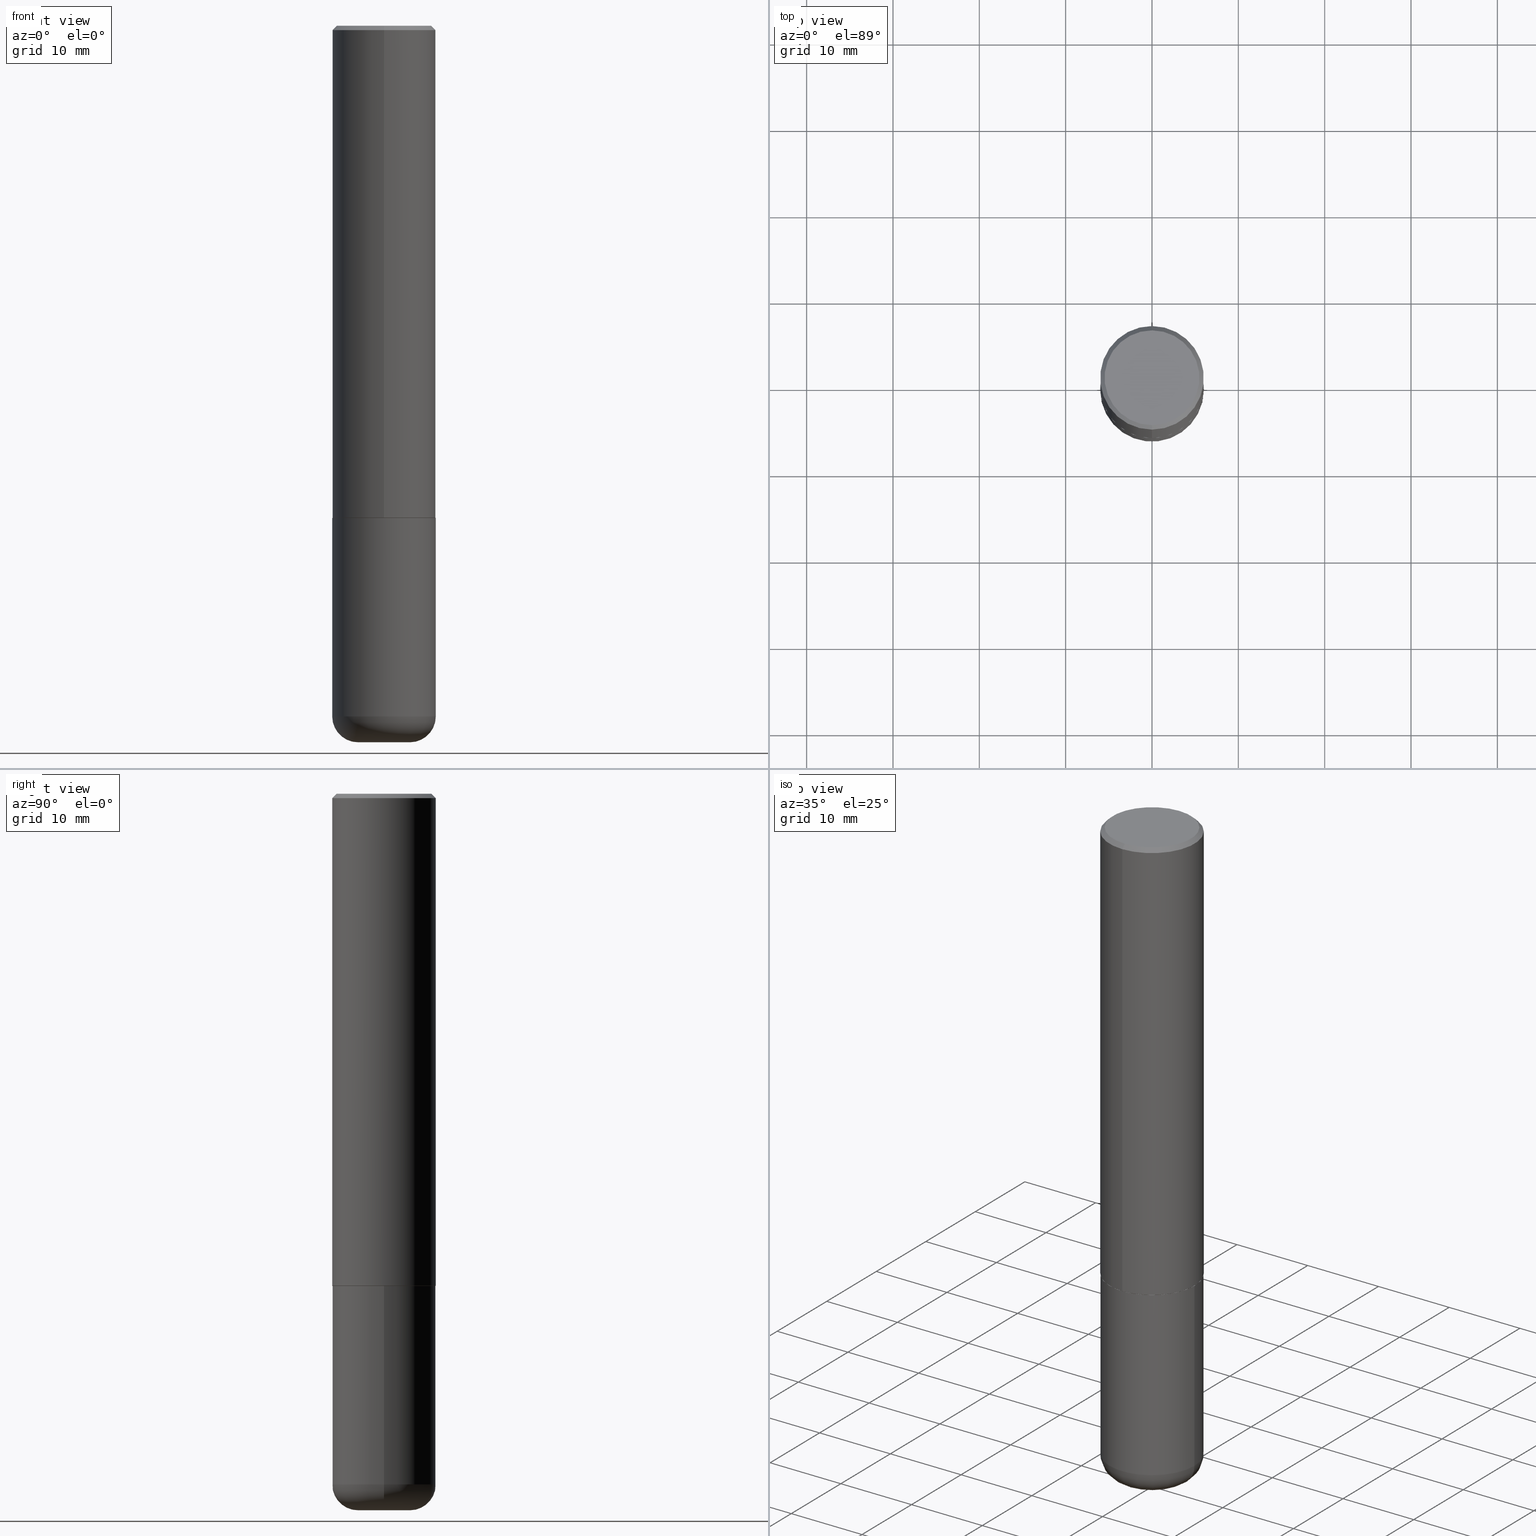
[diagram: canonical four-view strip — front | top / right | iso, engineering-drawing reading convention]
A machine part, canonical four-view strip (front | top / right | iso — engineering-drawing reading convention). The complete STEP part file that produces these views, byte-faithful:
ISO-10303-21;
HEADER;
FILE_DESCRIPTION (( 'STEP AP203' ),
    '1' );
FILE_NAME ('47172.STEP',
    '2024-03-06T01:27:27',
    ( '' ),
    ( '' ),
    'SwSTEP 2.0',
    'SolidWorks 2023',
    '' );
FILE_SCHEMA (( 'CONFIG_CONTROL_DESIGN' ));
ENDSEC;

DATA;
#1 = DIRECTION ( 'NONE',  ( 1.000000000000000000, -6.982962677686264344E-15, 4.883557194083111780E-29 ) ) ;
#2 = CIRCLE ( 'NONE', #68, 0.2361999999999999933 ) ;
#3 = DIRECTION ( 'NONE',  ( -2.445468806185136597E-29, 3.491481338843145583E-15, 1.000000000000000000 ) ) ;
#4 = ADVANCED_FACE ( 'NONE', ( #248 ), #299, .T. ) ;
#5 = ORIENTED_EDGE ( 'NONE', *, *, #257, .T. ) ;
#6 = DIRECTION ( 'NONE',  ( -6.982962677686265922E-15, -1.000000000000000000, 3.484499991918702719E-15 ) ) ;
#7 = PLANE ( 'NONE',  #114 ) ;
#8 = VERTEX_POINT ( 'NONE', #369 ) ;
#9 = EDGE_CURVE ( 'NONE', #234, #231, #21, .T. ) ;
#10 = ORIENTED_EDGE ( 'NONE', *, *, #9, .F. ) ;
#11 = EDGE_LOOP ( 'NONE', ( #208, #395, #271, #205 ) ) ;
#12 = DIRECTION ( 'NONE',  ( 1.000000000000000000, 0.000000000000000000, 0.000000000000000000 ) ) ;
#13 = FACE_OUTER_BOUND ( 'NONE', #306, .T. ) ;
#14 = PERSON_AND_ORGANIZATION ( #355, #28 ) ;
#15 = AXIS2_PLACEMENT_3D ( 'NONE', #317, #352, #321 ) ;
#16 = VERTEX_POINT ( 'NONE', #19 ) ;
#17 = ADVANCED_FACE ( 'NONE', ( #283 ), #310, .T. ) ;
#18 = CIRCLE ( 'NONE', #249, 0.2362000000000002709 ) ;
#19 = CARTESIAN_POINT ( 'NONE',  ( 1.678301941865385582E-15, 0.2361999999999924160, -2.243100000000000982 ) ) ;
#20 = ORIENTED_EDGE ( 'NONE', *, *, #112, .T. ) ;
#21 = LINE ( 'NONE', #251, #93 ) ;
#22 = CIRCLE ( 'NONE', #356, 0.2361999999999999933 ) ;
#23 = DIRECTION ( 'NONE',  ( -6.982962677686265922E-15, -1.000000000000000000, 3.494732472144603410E-15 ) ) ;
#24 = DIRECTION ( 'NONE',  ( 2.443198551934710321E-29, -3.494732472144603410E-15, -1.000000000000000000 ) ) ;
#25 = CARTESIAN_POINT ( 'NONE',  ( 7.178715118017931868E-45, -1.026837905226585320E-30, -2.938244667971532280E-16 ) ) ;
#26 = EDGE_CURVE ( 'NONE', #40, #231, #90, .T. ) ;
#27 = CONICAL_SURFACE ( 'NONE', #236, 0.2352000000000000202, 0.7853981633975336552 ) ;
#28 = ORGANIZATION ( 'UNSPECIFIED', 'UNSPECIFIED', '' ) ;
#29 = CARTESIAN_POINT ( 'NONE',  ( -1.649375784469443080E-15, -0.2362000000000081257, -2.243099999999999206 ) ) ;
#30 = DIRECTION ( 'NONE',  ( -6.982962677686265922E-15, -1.000000000000000000, 3.484499991918702719E-15 ) ) ;
#31 = EDGE_CURVE ( 'NONE', #173, #405, #370, .T. ) ;
#32 = DIRECTION ( 'NONE',  ( -6.982962677686265922E-15, -1.000000000000000000, 3.494732472144603410E-15 ) ) ;
#33 = ORIENTED_EDGE ( 'NONE', *, *, #26, .F. ) ;
#34 = VECTOR ( 'NONE', #400, 39.37007874015748143 ) ;
#35 = CC_DESIGN_APPROVAL ( #412, ( #269 ) ) ;
#36 = DIRECTION ( 'NONE',  ( 2.438088387897960049E-29, -3.491481338843145188E-15, -1.000000000000000000 ) ) ;
#37 = ORIENTED_EDGE ( 'NONE', *, *, #222, .T. ) ;
#38 = FACE_OUTER_BOUND ( 'NONE', #65, .T. ) ;
#39 = CARTESIAN_POINT ( 'NONE',  ( -0.1181000000000000383, -9.944215141480041685E-15, -3.267700000000000049 ) ) ;
#40 = VERTEX_POINT ( 'NONE', #304 ) ;
#41 = DIRECTION ( 'NONE',  ( 1.000000000000000000, -6.982962677686266711E-15, 4.876176775795936353E-29 ) ) ;
#42 = VECTOR ( 'NONE', #394, 39.37007874015748143 ) ;
#43 = ORIENTED_EDGE ( 'NONE', *, *, #110, .T. ) ;
#44 =( NAMED_UNIT ( * ) PLANE_ANGLE_UNIT ( ) SI_UNIT ( $, .RADIAN. ) );
#45 = CARTESIAN_POINT ( 'NONE',  ( 7.991058417971171713E-29, -1.140911357093774644E-14, -3.267700000000000049 ) ) ;
#46 = ADVANCED_FACE ( 'NONE', ( #13 ), #181, .F. ) ;
#47 = MECHANICAL_CONTEXT ( 'NONE', #162, 'mechanical' ) ;
#48 = CARTESIAN_POINT ( 'NONE',  ( -1.620449627073635079E-15, -0.2362000000000000766, -0.01999999999999926489 ) ) ;
#49 = MANIFOLD_SOLID_BREP ( 'Body-Move/Copy2[1]', #404 ) ;
#50 = APPLICATION_PROTOCOL_DEFINITION ( 'international standard', 'config_control_design', 1994, #354 ) ;
#51 = AXIS2_PLACEMENT_3D ( 'NONE', #318, #58, #91 ) ;
#52 = EDGE_LOOP ( 'NONE', ( #71, #398, #367, #329 ) ) ;
#53 = ORIENTED_EDGE ( 'NONE', *, *, #157, .F. ) ;
#54 = EDGE_CURVE ( 'NONE', #231, #295, #22, .T. ) ;
#55 = EDGE_LOOP ( 'NONE', ( #279, #149 ) ) ;
#56 = DIRECTION ( 'NONE',  ( 1.000000000000000000, -6.982962677686265133E-15, 0.000000000000000000 ) ) ;
#57 = AXIS2_PLACEMENT_3D ( 'NONE', #72, #3, #41 ) ;
#58 = DIRECTION ( 'NONE',  ( -6.982962677686266711E-15, -1.000000000000000000, 3.491481338843145583E-15 ) ) ;
#59 = DIRECTION ( 'NONE',  ( 6.982962677686265922E-15, 1.000000000000000000, -3.487819265831411744E-15 ) ) ;
#60 = DIRECTION ( 'NONE',  ( -6.982962677686265922E-15, -1.000000000000000000, 3.484499991918702719E-15 ) ) ;
#61 = CLOSED_SHELL ( 'NONE', ( #334, #17, #4, #229, #286, #170, #390, #46 ) ) ;
#62 = AXIS2_PLACEMENT_3D ( 'NONE', #25, #415, #347 ) ;
#63 = LINE ( 'NONE', #159, #128 ) ;
#64 = APPROVAL ( #183, 'UNSPECIFIED' ) ;
#65 = EDGE_LOOP ( 'NONE', ( #346, #20, #267, #184 ) ) ;
#66 = CARTESIAN_POINT ( 'NONE',  ( 0.2361999999999999933, -1.264614540928986883E-14, -3.149600000000000399 ) ) ;
#67 = ORIENTED_EDGE ( 'NONE', *, *, #118, .T. ) ;
#68 = AXIS2_PLACEMENT_3D ( 'NONE', #288, #191, #418 ) ;
#69 = LOCAL_TIME ( 20, 27, 27.00000000000000000, #401 ) ;
#70 = FACE_OUTER_BOUND ( 'NONE', #87, .T. ) ;
#71 = ORIENTED_EDGE ( 'NONE', *, *, #257, .F. ) ;
#72 = CARTESIAN_POINT ( 'NONE',  ( 0.000000000000000000, 0.000000000000000000, 0.000000000000000000 ) ) ;
#73 = ORIENTED_EDGE ( 'NONE', *, *, #353, .F. ) ;
#74 = CARTESIAN_POINT ( 'NONE',  ( 0.000000000000000000, 0.000000000000000000, 0.000000000000000000 ) ) ;
#75 = VERTEX_POINT ( 'NONE', #117 ) ;
#76 = EDGE_CURVE ( 'NONE', #16, #234, #18, .T. ) ;
#77 = DATE_AND_TIME ( #339, #364 ) ;
#78 = CIRCLE ( 'NONE', #287, 0.2361999999999999933 ) ;
#79 = LOCAL_TIME ( 20, 27, 27.00000000000000000, #406 ) ;
#80 = DIRECTION ( 'NONE',  ( -2.443198551934710321E-29, 3.494732472144603410E-15, 1.000000000000000000 ) ) ;
#81 = EDGE_CURVE ( 'NONE', #40, #220, #189, .T. ) ;
#82 = VERTEX_POINT ( 'NONE', #124 ) ;
#83 = PERSON_AND_ORGANIZATION ( #355, #28 ) ;
#84 = DIRECTION ( 'NONE',  ( -6.982962677686265922E-15, -1.000000000000000000, 3.469747663417773058E-15 ) ) ;
#85 = CARTESIAN_POINT ( 'NONE',  ( 0.000000000000000000, 0.000000000000000000, 0.000000000000000000 ) ) ;
#86 = EDGE_CURVE ( 'NONE', #220, #40, #147, .T. ) ;
#87 = EDGE_LOOP ( 'NONE', ( #402, #5, #73, #392 ) ) ;
#88 = AXIS2_PLACEMENT_3D ( 'NONE', #138, #266, #396 ) ;
#89 = APPROVAL_DATE_TIME ( #343, #412 ) ;
#90 = LINE ( 'NONE', #48, #209 ) ;
#91 = DIRECTION ( 'NONE',  ( 1.000000000000000000, -6.982962677686273021E-15, 0.000000000000000000 ) ) ;
#92 = CARTESIAN_POINT ( 'NONE',  ( 7.702248551960706711E-29, -1.099676962482037231E-14, -3.149600000000000399 ) ) ;
#93 = VECTOR ( 'NONE', #188, 39.37007874015748143 ) ;
#94 = CONICAL_SURFACE ( 'NONE', #275, 0.2352000000000000202, 0.7853981633975336552 ) ;
#95 =( GEOMETRIC_REPRESENTATION_CONTEXT ( 3 ) GLOBAL_UNCERTAINTY_ASSIGNED_CONTEXT ( ( #174 ) ) GLOBAL_UNIT_ASSIGNED_CONTEXT ( ( #134, #44, #305 ) ) REPRESENTATION_CONTEXT ( 'NONE', 'WORKASPACE' ) );
#96 = CC_DESIGN_DATE_AND_TIME_ASSIGNMENT ( #368, #276, ( #316 ) ) ;
#97 = DIRECTION ( 'NONE',  ( -2.445468806185136597E-29, 3.491481338843145583E-15, 1.000000000000000000 ) ) ;
#98 = CARTESIAN_POINT ( 'NONE',  ( 0.1181000000000000105, -1.223380146317249628E-14, -3.267700000000000049 ) ) ;
#99 = DIRECTION ( 'NONE',  ( 4.937700262164537787E-15, 0.7071067811865436870, -0.7071067811865513475 ) ) ;
#100 = AXIS2_PLACEMENT_3D ( 'NONE', #74, #109, #32 ) ;
#101 = FACE_OUTER_BOUND ( 'NONE', #55, .T. ) ;
#102 = DIRECTION ( 'NONE',  ( -2.445468806185136597E-29, 3.491481338843145583E-15, 1.000000000000000000 ) ) ;
#103 = EDGE_LOOP ( 'NONE', ( #187, #311, #409, #272 ) ) ;
#104 = DIRECTION ( 'NONE',  ( -2.443198551934710321E-29, 3.494732472144603016E-15, 1.000000000000000000 ) ) ;
#105 = ORIENTED_EDGE ( 'NONE', *, *, #54, .F. ) ;
#106 = VECTOR ( 'NONE', #223, 39.37007874015748143 ) ;
#107 = AXIS2_PLACEMENT_3D ( 'NONE', #202, #360, #389 ) ;
#108 = PLANE ( 'NONE',  #210 ) ;
#109 = DIRECTION ( 'NONE',  ( -2.443198551934710321E-29, 3.494732472144603410E-15, 1.000000000000000000 ) ) ;
#110 = EDGE_CURVE ( 'NONE', #173, #281, #139, .T. ) ;
#111 = EDGE_LOOP ( 'NONE', ( #340, #67, #43, #214 ) ) ;
#112 = EDGE_CURVE ( 'NONE', #405, #361, #255, .T. ) ;
#113 = APPROVAL_DATE_TIME ( #77, #362 ) ;
#114 = AXIS2_PLACEMENT_3D ( 'NONE', #166, #104, #296 ) ;
#115 = DIRECTION ( 'NONE',  ( 6.982962677686265922E-15, 1.000000000000000000, -3.494732472144603016E-15 ) ) ;
#116 = PERSON_AND_ORGANIZATION ( #355, #28 ) ;
#117 = CARTESIAN_POINT ( 'NONE',  ( 0.2362000000000000210, -9.484609056967400443E-15, -2.244100000000000428 ) ) ;
#118 = EDGE_CURVE ( 'NONE', #405, #173, #416, .T. ) ;
#119 = CALENDAR_DATE ( 2024, 5, 3 ) ;
#120 = EDGE_LOOP ( 'NONE', ( #324, #410 ) ) ;
#121 = AXIS2_PLACEMENT_3D ( 'NONE', #123, #308, #156 ) ;
#122 = AXIS2_PLACEMENT_3D ( 'NONE', #153, #80, #377 ) ;
#123 = CARTESIAN_POINT ( 'NONE',  ( 4.886397103869442398E-31, -6.989464944289237832E-17, -0.02000000000000009062 ) ) ;
#124 = CARTESIAN_POINT ( 'NONE',  ( -0.2362000000000000766, -7.737699506793781719E-15, -2.244100000000000428 ) ) ;
#125 = DIRECTION ( 'NONE',  ( 1.000000000000000000, -6.982962677686268288E-15, 0.000000000000000000 ) ) ;
#126 = EDGE_CURVE ( 'NONE', #281, #361, #78, .T. ) ;
#127 = CYLINDRICAL_SURFACE ( 'NONE', #176, 0.2361999999999999933 ) ;
#128 = VECTOR ( 'NONE', #256, 39.37007874015748143 ) ;
#129 = PRODUCT_DEFINITION_FORMATION_WITH_SPECIFIED_SOURCE ( 'ANY', '', #383, .NOT_KNOWN. ) ;
#130 = DIRECTION ( 'NONE',  ( -2.445468806185136597E-29, 3.491481338843145583E-15, 1.000000000000000000 ) ) ;
#131 = CARTESIAN_POINT ( 'NONE',  ( 0.000000000000000000, 0.000000000000000000, 0.000000000000000000 ) ) ;
#132 = CIRCLE ( 'NONE', #333, 0.2362000000000000210 ) ;
#133 = APPROVAL_PERSON_ORGANIZATION ( #83, #412, #247 ) ;
#134 =( CONVERSION_BASED_UNIT ( 'INCH', #292 ) LENGTH_UNIT ( ) NAMED_UNIT ( #135 ) );
#135 = DIMENSIONAL_EXPONENTS ( 1.000000000000000000, 0.000000000000000000, 0.000000000000000000, 0.000000000000000000, 0.000000000000000000, 0.000000000000000000, 0.000000000000000000 ) ;
#136 = DIRECTION ( 'NONE',  ( -2.445468806185136597E-29, 3.491481338843145583E-15, 1.000000000000000000 ) ) ;
#137 = CC_DESIGN_PERSON_AND_ORGANIZATION_ASSIGNMENT ( #180, #146, ( #269 ) ) ;
#138 = CARTESIAN_POINT ( 'NONE',  ( 7.702248551960706711E-29, -1.099676962482037231E-14, -3.149600000000000399 ) ) ;
#139 = CIRCLE ( 'NONE', #51, 0.1180999999999999966 ) ;
#140 = FACE_OUTER_BOUND ( 'NONE', #111, .T. ) ;
#141 = EDGE_CURVE ( 'NONE', #361, #82, #158, .T. ) ;
#142 = PERSON_AND_ORGANIZATION ( #355, #28 ) ;
#143 = VERTEX_POINT ( 'NONE', #413 ) ;
#144 = PERSON_AND_ORGANIZATION ( #355, #28 ) ;
#145 = DIRECTION ( 'NONE',  ( 2.443198551934710321E-29, -3.494732472144603016E-15, -1.000000000000000000 ) ) ;
#146 = PERSON_AND_ORGANIZATION_ROLE ( 'classification_officer' ) ;
#147 = CIRCLE ( 'NONE', #62, 0.2162000000000002808 ) ;
#148 = LOCAL_TIME ( 20, 27, 27.00000000000000000, #375 ) ;
#149 = ORIENTED_EDGE ( 'NONE', *, *, #244, .F. ) ;
#150 = CALENDAR_DATE ( 2024, 5, 3 ) ;
#151 = ORIENTED_EDGE ( 'NONE', *, *, #259, .T. ) ;
#152 = APPROVAL_STATUS ( 'not_yet_approved' ) ;
#153 = CARTESIAN_POINT ( 'NONE',  ( 0.000000000000000000, 0.000000000000000000, 0.000000000000000000 ) ) ;
#154 = PRODUCT_DEFINITION_SHAPE ( 'NONE', 'NONE',  #316 ) ;
#155 = EDGE_CURVE ( 'NONE', #295, #231, #2, .T. ) ;
#156 = DIRECTION ( 'NONE',  ( 6.982962677686265922E-15, 1.000000000000000000, -3.487819265831411744E-15 ) ) ;
#157 = EDGE_CURVE ( 'NONE', #82, #75, #380, .T. ) ;
#158 = LINE ( 'NONE', #225, #194 ) ;
#159 = CARTESIAN_POINT ( 'NONE',  ( -1.642392821791755093E-15, -0.2352000000000078750, -2.244099999999999540 ) ) ;
#160 = DIRECTION ( 'NONE',  ( -2.445468806185136877E-29, 3.491481338843145188E-15, 1.000000000000000000 ) ) ;
#161 = CIRCLE ( 'NONE', #397, 0.2361999999999999933 ) ;
#162 = APPLICATION_CONTEXT ( 'configuration controlled 3d designs of mechanical parts and assemblies' ) ;
#163 = ADVANCED_FACE ( 'NONE', ( #379 ), #127, .T. ) ;
#164 = LINE ( 'NONE', #386, #411 ) ;
#165 = LINE ( 'NONE', #332, #42 ) ;
#166 = CARTESIAN_POINT ( 'NONE',  ( 5.482781870396684000E-29, -7.842529140739704038E-15, -2.244100000000000428 ) ) ;
#167 = EDGE_LOOP ( 'NONE', ( #33, #331, #235, #300 ) ) ;
#168 = AXIS2_PLACEMENT_3D ( 'NONE', #391, #36, #239 ) ;
#169 = CARTESIAN_POINT ( 'NONE',  ( 7.702248551960706711E-29, -1.099676962482037231E-14, -3.149600000000000399 ) ) ;
#170 = ADVANCED_FACE ( 'NONE', ( #224 ), #27, .T. ) ;
#171 = ORIENTED_EDGE ( 'NONE', *, *, #118, .F. ) ;
#172 = FACE_OUTER_BOUND ( 'NONE', #120, .T. ) ;
#173 = VERTEX_POINT ( 'NONE', #98 ) ;
#174 = UNCERTAINTY_MEASURE_WITH_UNIT (LENGTH_MEASURE( 1.000000000000000082E-05 ), #134, 'distance_accuracy_value', 'NONE');
#175 = FACE_OUTER_BOUND ( 'NONE', #103, .T. ) ;
#176 = AXIS2_PLACEMENT_3D ( 'NONE', #131, #378, #350 ) ;
#177 = PERSON_AND_ORGANIZATION ( #355, #28 ) ;
#178 = EDGE_LOOP ( 'NONE', ( #203, #197, #212, #359 ) ) ;
#179 = DIRECTION ( 'NONE',  ( 1.000000000000000000, -6.982962677686272233E-15, 0.000000000000000000 ) ) ;
#180 = PERSON_AND_ORGANIZATION ( #355, #28 ) ;
#181 = PLANE ( 'NONE',  #268 ) ;
#182 = CONICAL_SURFACE ( 'NONE', #387, 0.2361999999999999933, 0.7853981633974463916 ) ;
#183 = APPROVAL_STATUS ( 'not_yet_approved' ) ;
#184 = ORIENTED_EDGE ( 'NONE', *, *, #110, .F. ) ;
#185 = EDGE_CURVE ( 'NONE', #16, #295, #193, .T. ) ;
#186 = SHAPE_DEFINITION_REPRESENTATION ( #154, #312 ) ;
#187 = ORIENTED_EDGE ( 'NONE', *, *, #185, .F. ) ;
#188 = DIRECTION ( 'NONE',  ( -2.443198551934710321E-29, 3.494732472144603016E-15, 1.000000000000000000 ) ) ;
#189 = CIRCLE ( 'NONE', #341, 0.2162000000000002808 ) ;
#190 = CARTESIAN_POINT ( 'NONE',  ( -0.1180999999999999966, -1.015761865388769332E-14, -3.149600000000000399 ) ) ;
#191 = DIRECTION ( 'NONE',  ( -2.443198551934710321E-29, 3.494732472144603410E-15, 1.000000000000000000 ) ) ;
#192 = DIRECTION ( 'NONE',  ( -2.443198551934710321E-29, 3.494732472144603410E-15, 1.000000000000000000 ) ) ;
#193 = LINE ( 'NONE', #351, #106 ) ;
#194 = VECTOR ( 'NONE', #160, 39.37007874015748143 ) ;
#195 = TOROIDAL_SURFACE ( 'NONE', #88, 0.1180999999999999966, 0.1181000000000000105 ) ;
#196 = DIRECTION ( 'NONE',  ( -2.443198551934710321E-29, 3.494732472144603410E-15, 1.000000000000000000 ) ) ;
#197 = ORIENTED_EDGE ( 'NONE', *, *, #26, .T. ) ;
#198 = EDGE_CURVE ( 'NONE', #143, #234, #63, .T. ) ;
#199 = CARTESIAN_POINT ( 'NONE',  ( 5.482781870396684000E-29, -7.842529140739704038E-15, -2.244100000000000428 ) ) ;
#200 = ORIENTED_EDGE ( 'NONE', *, *, #185, .T. ) ;
#201 = CC_DESIGN_SECURITY_CLASSIFICATION ( #269, ( #129 ) ) ;
#202 = CARTESIAN_POINT ( 'NONE',  ( 5.480338671844748839E-29, -7.839034408267561952E-15, -2.243100000000000094 ) ) ;
#203 = ORIENTED_EDGE ( 'NONE', *, *, #81, .F. ) ;
#204 = CARTESIAN_POINT ( 'NONE',  ( 7.991058417971171713E-29, -1.140911357093774644E-14, -3.267700000000000049 ) ) ;
#205 = ORIENTED_EDGE ( 'NONE', *, *, #259, .F. ) ;
#206 = PRODUCT_RELATED_PRODUCT_CATEGORY ( 'detail', '', ( #383 ) ) ;
#207 = LINE ( 'NONE', #291, #34 ) ;
#208 = ORIENTED_EDGE ( 'NONE', *, *, #126, .T. ) ;
#209 = VECTOR ( 'NONE', #336, 39.37007874015748143 ) ;
#210 = AXIS2_PLACEMENT_3D ( 'NONE', #204, #230, #330 ) ;
#211 = PERSON_AND_ORGANIZATION_ROLE ( 'creator' ) ;
#212 = ORIENTED_EDGE ( 'NONE', *, *, #54, .T. ) ;
#213 = DATE_AND_TIME ( #309, #327 ) ;
#214 = ORIENTED_EDGE ( 'NONE', *, *, #222, .F. ) ;
#215 = CC_DESIGN_PERSON_AND_ORGANIZATION_ASSIGNMENT ( #177, #211, ( #129 ) ) ;
#216 = CALENDAR_DATE ( 2024, 5, 3 ) ;
#217 = CARTESIAN_POINT ( 'NONE',  ( 7.178715118017931868E-45, -1.026837905226585320E-30, -2.938244667971532280E-16 ) ) ;
#218 = CIRCLE ( 'NONE', #349, 0.2352000000000000202 ) ;
#219 = APPROVAL_STATUS ( 'not_yet_approved' ) ;
#220 = VERTEX_POINT ( 'NONE', #382 ) ;
#221 = EDGE_LOOP ( 'NONE', ( #366, #171 ) ) ;
#222 = EDGE_CURVE ( 'NONE', #361, #281, #161, .T. ) ;
#223 = DIRECTION ( 'NONE',  ( -2.443198551934710321E-29, 3.494732472144603016E-15, 1.000000000000000000 ) ) ;
#224 = FACE_OUTER_BOUND ( 'NONE', #52, .T. ) ;
#225 = CARTESIAN_POINT ( 'NONE',  ( -0.2361999999999999933, 1.678301941865356591E-15, -1.161852468318208757E-29 ) ) ;
#226 = DIRECTION ( 'NONE',  ( -2.443198551934710321E-29, 3.494732472144603410E-15, 1.000000000000000000 ) ) ;
#227 = CARTESIAN_POINT ( 'NONE',  ( 5.482781870396684000E-29, -7.842529140739704038E-15, -2.244100000000000428 ) ) ;
#228 = CIRCLE ( 'NONE', #301, 0.2352000000000000202 ) ;
#229 = ADVANCED_FACE ( 'NONE', ( #315 ), #182, .T. ) ;
#230 = DIRECTION ( 'NONE',  ( 2.438088387897960049E-29, -3.491481338843145188E-15, -1.000000000000000000 ) ) ;
#231 = VERTEX_POINT ( 'NONE', #319 ) ;
#232 = EDGE_CURVE ( 'NONE', #143, #8, #218, .T. ) ;
#233 = CYLINDRICAL_SURFACE ( 'NONE', #100, 0.2362000000000001321 ) ;
#234 = VERTEX_POINT ( 'NONE', #29 ) ;
#235 = ORIENTED_EDGE ( 'NONE', *, *, #238, .T. ) ;
#236 = AXIS2_PLACEMENT_3D ( 'NONE', #260, #417, #357 ) ;
#237 = DESIGN_CONTEXT ( 'detailed design', #354, 'design' ) ;
#238 = EDGE_CURVE ( 'NONE', #220, #295, #164, .T. ) ;
#239 = DIRECTION ( 'NONE',  ( -1.000000000000000000, 6.982962677686265922E-15, -4.876176775795935793E-29 ) ) ;
#240 = DIRECTION ( 'NONE',  ( 0.000000000000000000, 0.000000000000000000, 1.000000000000000000 ) ) ;
#241 = ORIENTED_EDGE ( 'NONE', *, *, #353, .T. ) ;
#242 = SECURITY_CLASSIFICATION_LEVEL ( 'unclassified' ) ;
#243 = CARTESIAN_POINT ( 'NONE',  ( 4.886397103869442398E-31, -6.989464944289237832E-17, -0.02000000000000009062 ) ) ;
#244 = EDGE_CURVE ( 'NONE', #8, #143, #228, .T. ) ;
#245 = DATE_AND_TIME ( #119, #79 ) ;
#246 = CARTESIAN_POINT ( 'NONE',  ( 5.480338671844748839E-29, -7.839034408267561952E-15, -2.243100000000000094 ) ) ;
#247 = APPROVAL_ROLE ( '' ) ;
#248 = FACE_OUTER_BOUND ( 'NONE', #178, .T. ) ;
#249 = AXIS2_PLACEMENT_3D ( 'NONE', #246, #374, #84 ) ;
#250 = APPROVAL_ROLE ( '' ) ;
#251 = CARTESIAN_POINT ( 'NONE',  ( -1.649375784469496920E-15, -0.2362000000000001321, 8.254558099205557624E-16 ) ) ;
#252 = DIRECTION ( 'NONE',  ( -2.445468806185136597E-29, 3.491481338843145583E-15, 1.000000000000000000 ) ) ;
#253 = CARTESIAN_POINT ( 'NONE',  ( 4.886397103869442398E-31, -6.989464944289237832E-17, -0.02000000000000009062 ) ) ;
#254 = AXIS2_PLACEMENT_3D ( 'NONE', #45, #277, #179 ) ;
#255 = CIRCLE ( 'NONE', #313, 0.1180999999999999966 ) ;
#256 = DIRECTION ( 'NONE',  ( -4.937700262164969294E-15, -0.7071067811866054154, 0.7071067811864896191 ) ) ;
#257 = EDGE_CURVE ( 'NONE', #8, #16, #165, .T. ) ;
#258 = DIRECTION ( 'NONE',  ( 1.000000000000000000, -6.982962677686265133E-15, 0.000000000000000000 ) ) ;
#259 = EDGE_CURVE ( 'NONE', #281, #75, #207, .T. ) ;
#260 = CARTESIAN_POINT ( 'NONE',  ( 5.482781870396684000E-29, -7.842529140739704038E-15, -2.244100000000000428 ) ) ;
#261 = AXIS2_PLACEMENT_3D ( 'NONE', #284, #252, #125 ) ;
#262 = FACE_OUTER_BOUND ( 'NONE', #11, .T. ) ;
#263 = ORIENTED_EDGE ( 'NONE', *, *, #81, .T. ) ;
#264 = CARTESIAN_POINT ( 'NONE',  ( -0.2361999999999999933, -9.318467682955017493E-15, -3.149600000000000399 ) ) ;
#265 = CC_DESIGN_DATE_AND_TIME_ASSIGNMENT ( #245, #373, ( #269 ) ) ;
#266 = DIRECTION ( 'NONE',  ( -2.445468806185136597E-29, 3.491481338843145583E-15, 1.000000000000000000 ) ) ;
#267 = ORIENTED_EDGE ( 'NONE', *, *, #126, .F. ) ;
#268 = AXIS2_PLACEMENT_3D ( 'NONE', #338, #145, #115 ) ;
#269 = SECURITY_CLASSIFICATION ( '', '', #242 ) ;
#270 = PERSON_AND_ORGANIZATION_ROLE ( 'design_owner' ) ;
#271 = ORIENTED_EDGE ( 'NONE', *, *, #273, .F. ) ;
#272 = ORIENTED_EDGE ( 'NONE', *, *, #155, .F. ) ;
#273 = EDGE_CURVE ( 'NONE', #75, #82, #132, .T. ) ;
#274 = CIRCLE ( 'NONE', #107, 0.2362000000000002709 ) ;
#275 = AXIS2_PLACEMENT_3D ( 'NONE', #199, #294, #6 ) ;
#276 = DATE_TIME_ROLE ( 'creation_date' ) ;
#277 = DIRECTION ( 'NONE',  ( -2.445468806185136597E-29, 3.491481338843145583E-15, 1.000000000000000000 ) ) ;
#278 = COORDINATED_UNIVERSAL_TIME_OFFSET ( 5, 0, .BEHIND. ) ;
#279 = ORIENTED_EDGE ( 'NONE', *, *, #232, .F. ) ;
#280 = ADVANCED_FACE ( 'NONE', ( #172 ), #358, .F. ) ;
#281 = VERTEX_POINT ( 'NONE', #66 ) ;
#282 = TOROIDAL_SURFACE ( 'NONE', #293, 0.1180999999999999966, 0.1181000000000000105 ) ;
#283 = FACE_OUTER_BOUND ( 'NONE', #344, .T. ) ;
#284 = CARTESIAN_POINT ( 'NONE',  ( 5.487876547960065873E-29, -7.835233272497903917E-15, -2.244100000000000428 ) ) ;
#285 = CARTESIAN_POINT ( 'NONE',  ( 7.702248551960706711E-29, -1.099676962482037231E-14, -3.149600000000000399 ) ) ;
#286 = ADVANCED_FACE ( 'NONE', ( #175 ), #233, .T. ) ;
#287 = AXIS2_PLACEMENT_3D ( 'NONE', #285, #97, #56 ) ;
#288 = CARTESIAN_POINT ( 'NONE',  ( 4.886397103869442398E-31, -6.989464944289237832E-17, -0.02000000000000009062 ) ) ;
#289 = DIRECTION ( 'NONE',  ( 7.105427357601001859E-15, 1.000000000000000000, -3.491481338843145583E-15 ) ) ;
#290 = ADVANCED_FACE ( 'NONE', ( #262 ), #365, .T. ) ;
#291 = CARTESIAN_POINT ( 'NONE',  ( 0.2361999999999999933, -1.649375784469496131E-15, 1.151752954443000088E-29 ) ) ;
#292 = LENGTH_MEASURE_WITH_UNIT ( LENGTH_MEASURE( 0.02539999999999999897 ), #298 );
#293 = AXIS2_PLACEMENT_3D ( 'NONE', #169, #136, #1 ) ;
#294 = DIRECTION ( 'NONE',  ( -2.443198551934710321E-29, 3.494732472144603410E-15, 1.000000000000000000 ) ) ;
#295 = VERTEX_POINT ( 'NONE', #328 ) ;
#296 = DIRECTION ( 'NONE',  ( -6.982962677686265922E-15, -1.000000000000000000, 3.494732472144603016E-15 ) ) ;
#297 = ORIENTED_EDGE ( 'NONE', *, *, #141, .F. ) ;
#298 =( LENGTH_UNIT ( ) NAMED_UNIT ( * ) SI_UNIT ( $, .METRE. ) );
#299 = CONICAL_SURFACE ( 'NONE', #121, 0.2361999999999999933, 0.7853981633974463916 ) ;
#300 = ORIENTED_EDGE ( 'NONE', *, *, #155, .T. ) ;
#301 = AXIS2_PLACEMENT_3D ( 'NONE', #227, #196, #30 ) ;
#302 = CC_DESIGN_APPROVAL ( #362, ( #129 ) ) ;
#303 = ADVANCED_FACE ( 'NONE', ( #140 ), #282, .T. ) ;
#304 = CARTESIAN_POINT ( 'NONE',  ( -1.551844647095920733E-15, -0.2162000000000002808, 4.617366936805109079E-16 ) ) ;
#305 =( NAMED_UNIT ( * ) SI_UNIT ( $, .STERADIAN. ) SOLID_ANGLE_UNIT ( ) );
#306 = EDGE_LOOP ( 'NONE', ( #376, #263 ) ) ;
#307 = PERSON_AND_ORGANIZATION_ROLE ( 'design_supplier' ) ;
#308 = DIRECTION ( 'NONE',  ( 2.443198551934710321E-29, -3.494732472144603410E-15, -1.000000000000000000 ) ) ;
#309 = CALENDAR_DATE ( 2024, 5, 3 ) ;
#310 = CYLINDRICAL_SURFACE ( 'NONE', #122, 0.2362000000000001321 ) ;
#311 = ORIENTED_EDGE ( 'NONE', *, *, #76, .T. ) ;
#312 = ADVANCED_BREP_SHAPE_REPRESENTATION ( '47172', ( #49, #322, #314 ), #95 ) ;
#313 = AXIS2_PLACEMENT_3D ( 'NONE', #190, #289, #414 ) ;
#314 = AXIS2_PLACEMENT_3D ( 'NONE', #85, #240, #12 ) ;
#315 = FACE_OUTER_BOUND ( 'NONE', #167, .T. ) ;
#316 = PRODUCT_DEFINITION ( 'UNKNOWN', '', #129, #237 ) ;
#317 = CARTESIAN_POINT ( 'NONE',  ( 7.991058417971171713E-29, -1.140911357093774644E-14, -3.267700000000000049 ) ) ;
#318 = CARTESIAN_POINT ( 'NONE',  ( 0.1180999999999999966, -1.182145751705512057E-14, -3.149600000000000399 ) ) ;
#319 = CARTESIAN_POINT ( 'NONE',  ( -1.620449627073635079E-15, -0.2362000000000000766, -0.01999999999999926489 ) ) ;
#320 = CC_DESIGN_PERSON_AND_ORGANIZATION_ASSIGNMENT ( #335, #307, ( #129 ) ) ;
#321 = DIRECTION ( 'NONE',  ( 1.000000000000000000, -6.982962677686272233E-15, 0.000000000000000000 ) ) ;
#322 = MANIFOLD_SOLID_BREP ( 'Body-Move/Copy2[2]', #61 ) ;
#323 = CARTESIAN_POINT ( 'NONE',  ( 5.487876547960065873E-29, -7.835233272497903917E-15, -2.244100000000000428 ) ) ;
#324 = ORIENTED_EDGE ( 'NONE', *, *, #273, .T. ) ;
#325 = DIRECTION ( 'NONE',  ( 1.000000000000000000, -6.982962677686268288E-15, 0.000000000000000000 ) ) ;
#326 = EDGE_LOOP ( 'NONE', ( #297, #37, #151, #53 ) ) ;
#327 = LOCAL_TIME ( 20, 27, 27.00000000000000000, #278 ) ;
#328 = CARTESIAN_POINT ( 'NONE',  ( 1.649375784469496525E-15, 0.2361999999999999378, -0.02000000000000091288 ) ) ;
#329 = ORIENTED_EDGE ( 'NONE', *, *, #76, .F. ) ;
#330 = DIRECTION ( 'NONE',  ( -1.000000000000000000, 6.982962677686265922E-15, -4.876176775795935793E-29 ) ) ;
#331 = ORIENTED_EDGE ( 'NONE', *, *, #86, .F. ) ;
#332 = CARTESIAN_POINT ( 'NONE',  ( 1.671196514507810409E-15, 0.2351999999999921653, -2.244100000000000872 ) ) ;
#333 = AXIS2_PLACEMENT_3D ( 'NONE', #323, #102, #325 ) ;
#334 = ADVANCED_FACE ( 'NONE', ( #70 ), #94, .T. ) ;
#335 = PERSON_AND_ORGANIZATION ( #355, #28 ) ;
#336 = DIRECTION ( 'NONE',  ( -4.851104656540954020E-15, -0.7071067811865485719, -0.7071067811865464625 ) ) ;
#337 = PERSON_AND_ORGANIZATION_ROLE ( 'creator' ) ;
#338 = CARTESIAN_POINT ( 'NONE',  ( 1.509716530915772690E-15, 0.2162000000000002808, -9.024733938762408486E-16 ) ) ;
#339 = CALENDAR_DATE ( 2024, 5, 3 ) ;
#340 = ORIENTED_EDGE ( 'NONE', *, *, #112, .F. ) ;
#341 = AXIS2_PLACEMENT_3D ( 'NONE', #217, #192, #23 ) ;
#342 = APPROVAL_PERSON_ORGANIZATION ( #14, #64, #250 ) ;
#343 = DATE_AND_TIME ( #216, #148 ) ;
#344 = EDGE_LOOP ( 'NONE', ( #241, #200, #105, #10 ) ) ;
#345 = APPROVAL_ROLE ( '' ) ;
#346 = ORIENTED_EDGE ( 'NONE', *, *, #31, .T. ) ;
#347 = DIRECTION ( 'NONE',  ( -6.982962677686265922E-15, -1.000000000000000000, 3.494732472144603410E-15 ) ) ;
#348 = CC_DESIGN_PERSON_AND_ORGANIZATION_ASSIGNMENT ( #144, #270, ( #383 ) ) ;
#349 = AXIS2_PLACEMENT_3D ( 'NONE', #385, #226, #60 ) ;
#350 = DIRECTION ( 'NONE',  ( 1.000000000000000000, -6.982962677686266711E-15, 4.876176775795936353E-29 ) ) ;
#351 = CARTESIAN_POINT ( 'NONE',  ( 1.678301941865357380E-15, 0.2362000000000001321, -8.254558099205557624E-16 ) ) ;
#352 = DIRECTION ( 'NONE',  ( -2.445468806185136597E-29, 3.491481338843145583E-15, 1.000000000000000000 ) ) ;
#353 = EDGE_CURVE ( 'NONE', #234, #16, #274, .T. ) ;
#354 = APPLICATION_CONTEXT ( 'configuration controlled 3d designs of mechanical parts and assemblies' ) ;
#355 = PERSON ( 'UNSPECIFIED', 'UNSPECIFIED', 'UNSPECIFIED', ('UNSPECIFIED'), ('UNSPECIFIED'), ('UNSPECIFIED') ) ;
#356 = AXIS2_PLACEMENT_3D ( 'NONE', #243, #372, #407 ) ;
#357 = DIRECTION ( 'NONE',  ( -6.982962677686265922E-15, -1.000000000000000000, 3.484499991918702719E-15 ) ) ;
#358 = PLANE ( 'NONE',  #168 ) ;
#359 = ORIENTED_EDGE ( 'NONE', *, *, #238, .F. ) ;
#360 = DIRECTION ( 'NONE',  ( -2.443198551934710321E-29, 3.494732472144603410E-15, 1.000000000000000000 ) ) ;
#361 = VERTEX_POINT ( 'NONE', #264 ) ;
#362 = APPROVAL ( #152, 'UNSPECIFIED' ) ;
#363 = FACE_OUTER_BOUND ( 'NONE', #221, .T. ) ;
#364 = LOCAL_TIME ( 20, 27, 27.00000000000000000, #403 ) ;
#365 = CYLINDRICAL_SURFACE ( 'NONE', #57, 0.2361999999999999933 ) ;
#366 = ORIENTED_EDGE ( 'NONE', *, *, #31, .F. ) ;
#367 = ORIENTED_EDGE ( 'NONE', *, *, #198, .T. ) ;
#368 = DATE_AND_TIME ( #150, #69 ) ;
#369 = CARTESIAN_POINT ( 'NONE',  ( 1.674749228186611702E-15, 0.2351999999999921653, -2.244100000000000872 ) ) ;
#370 = CIRCLE ( 'NONE', #254, 0.1181000000000000105 ) ;
#371 = APPLICATION_PROTOCOL_DEFINITION ( 'international standard', 'config_control_design', 1994, #162 ) ;
#372 = DIRECTION ( 'NONE',  ( -2.443198551934710321E-29, 3.494732472144603410E-15, 1.000000000000000000 ) ) ;
#373 = DATE_TIME_ROLE ( 'classification_date' ) ;
#374 = DIRECTION ( 'NONE',  ( -2.443198551934710321E-29, 3.494732472144603410E-15, 1.000000000000000000 ) ) ;
#375 = COORDINATED_UNIVERSAL_TIME_OFFSET ( 5, 0, .BEHIND. ) ;
#376 = ORIENTED_EDGE ( 'NONE', *, *, #86, .T. ) ;
#377 = DIRECTION ( 'NONE',  ( -6.982962677686265922E-15, -1.000000000000000000, 3.494732472144603410E-15 ) ) ;
#378 = DIRECTION ( 'NONE',  ( -2.445468806185136597E-29, 3.491481338843145583E-15, 1.000000000000000000 ) ) ;
#379 = FACE_OUTER_BOUND ( 'NONE', #326, .T. ) ;
#380 = CIRCLE ( 'NONE', #261, 0.2362000000000000210 ) ;
#381 = APPROVAL_PERSON_ORGANIZATION ( #142, #362, #345 ) ;
#382 = CARTESIAN_POINT ( 'NONE',  ( 1.579546157692634608E-15, 0.2162000000000002808, -1.049385627274817561E-15 ) ) ;
#383 = PRODUCT ( '47172', '47172', '', ( #47 ) ) ;
#384 = CC_DESIGN_PERSON_AND_ORGANIZATION_ASSIGNMENT ( #116, #337, ( #316 ) ) ;
#385 = CARTESIAN_POINT ( 'NONE',  ( 5.482781870396684000E-29, -7.842529140739704038E-15, -2.244100000000000428 ) ) ;
#386 = CARTESIAN_POINT ( 'NONE',  ( 1.649375784469496525E-15, 0.2361999999999999378, -0.02000000000000091288 ) ) ;
#387 = AXIS2_PLACEMENT_3D ( 'NONE', #253, #24, #59 ) ;
#388 = CC_DESIGN_APPROVAL ( #64, ( #316 ) ) ;
#389 = DIRECTION ( 'NONE',  ( -6.982962677686265922E-15, -1.000000000000000000, 3.469747663417773058E-15 ) ) ;
#390 = ADVANCED_FACE ( 'NONE', ( #101 ), #7, .F. ) ;
#391 = CARTESIAN_POINT ( 'NONE',  ( 5.487876547960065873E-29, -7.835233272497903917E-15, -2.244100000000000428 ) ) ;
#392 = ORIENTED_EDGE ( 'NONE', *, *, #198, .F. ) ;
#393 = ADVANCED_FACE ( 'NONE', ( #38 ), #195, .T. ) ;
#394 = DIRECTION ( 'NONE',  ( 5.024295867788490741E-15, 0.7071067811866103003, 0.7071067811864847341 ) ) ;
#395 = ORIENTED_EDGE ( 'NONE', *, *, #141, .T. ) ;
#396 = DIRECTION ( 'NONE',  ( 1.000000000000000000, -6.982962677686264344E-15, 4.883557194083111780E-29 ) ) ;
#397 = AXIS2_PLACEMENT_3D ( 'NONE', #92, #130, #258 ) ;
#398 = ORIENTED_EDGE ( 'NONE', *, *, #244, .T. ) ;
#399 = ADVANCED_FACE ( 'NONE', ( #363 ), #108, .T. ) ;
#400 = DIRECTION ( 'NONE',  ( -2.445468806185136877E-29, 3.491481338843145188E-15, 1.000000000000000000 ) ) ;
#401 = COORDINATED_UNIVERSAL_TIME_OFFSET ( 5, 0, .BEHIND. ) ;
#402 = ORIENTED_EDGE ( 'NONE', *, *, #232, .T. ) ;
#403 = COORDINATED_UNIVERSAL_TIME_OFFSET ( 5, 0, .BEHIND. ) ;
#404 = CLOSED_SHELL ( 'NONE', ( #290, #393, #280, #163, #303, #399 ) ) ;
#405 = VERTEX_POINT ( 'NONE', #39 ) ;
#406 = COORDINATED_UNIVERSAL_TIME_OFFSET ( 5, 0, .BEHIND. ) ;
#407 = DIRECTION ( 'NONE',  ( -6.982962677686265922E-15, -1.000000000000000000, 3.487819265831411744E-15 ) ) ;
#408 = APPROVAL_DATE_TIME ( #213, #64 ) ;
#409 = ORIENTED_EDGE ( 'NONE', *, *, #9, .T. ) ;
#410 = ORIENTED_EDGE ( 'NONE', *, *, #157, .T. ) ;
#411 = VECTOR ( 'NONE', #99, 39.37007874015748143 ) ;
#412 = APPROVAL ( #219, 'UNSPECIFIED' ) ;
#413 = CARTESIAN_POINT ( 'NONE',  ( -1.642392821791755093E-15, -0.2352000000000078750, -2.244099999999999540 ) ) ;
#414 = DIRECTION ( 'NONE',  ( -1.000000000000000000, 7.105427357601005014E-15, 0.000000000000000000 ) ) ;
#415 = DIRECTION ( 'NONE',  ( -2.443198551934710321E-29, 3.494732472144603410E-15, 1.000000000000000000 ) ) ;
#416 = CIRCLE ( 'NONE', #15, 0.1181000000000000105 ) ;
#417 = DIRECTION ( 'NONE',  ( -2.443198551934710321E-29, 3.494732472144603410E-15, 1.000000000000000000 ) ) ;
#418 = DIRECTION ( 'NONE',  ( -6.982962677686265922E-15, -1.000000000000000000, 3.487819265831411744E-15 ) ) ;
ENDSEC;
END-ISO-10303-21;
